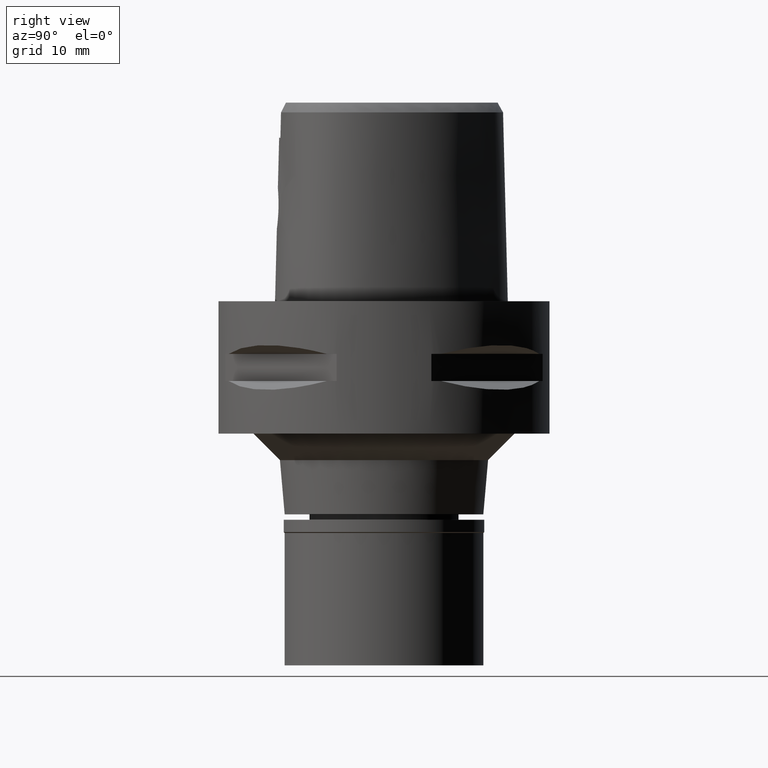
[diagram: clean part render]
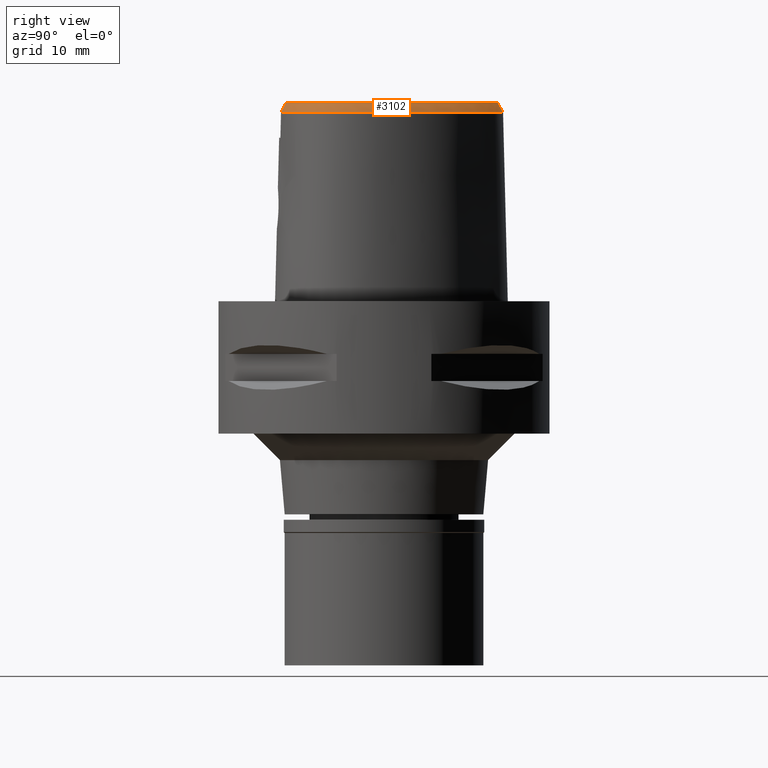
[diagram: same view with one face highlighted and labeled with its STEP entity id]
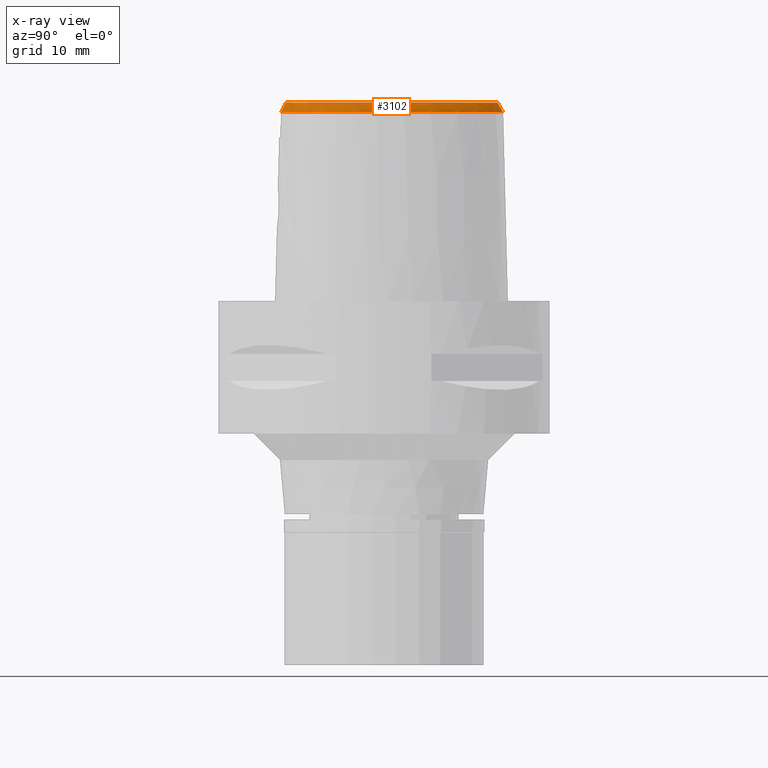
[diagram: x-ray of the same camera — body ghosted, the highlighted face saturated]
A machine part, right view. The second image highlights one B-rep face of the part: STEP entity #3102.
The next image is the same camera in x-ray: the body ghosted, the highlighted face saturated — about 0% of this face is hidden behind the body in this view.
In plain terms, the highlighted face is a freeform B-spline surface patch.
Its self-contained STEP definition (entity closure, byte-faithful):
#8 = CARTESIAN_POINT ( 'NONE',  ( 0.6093838095963001189, 17.71230683697999808, 28.97686686012000123 ) ) ;
#22 = CARTESIAN_POINT ( 'NONE',  ( 2.935843368188313818, -15.25651436812808193, 29.10537844856967382 ) ) ;
#33 = CARTESIAN_POINT ( 'NONE',  ( 5.902447799194773026, -15.16907841529369705, 28.52071728562183139 ) ) ;
#64 = CARTESIAN_POINT ( 'NONE',  ( 6.725716872381999778, -14.30436687949999985, 29.54379367783999655 ) ) ;
#88 = CARTESIAN_POINT ( 'NONE',  ( 9.864275885139001332, -13.15703569186000088, 29.54379249529999996 ) ) ;
#91 = CARTESIAN_POINT ( 'NONE',  ( 16.11273027397322721, -2.627494158580803596, 30.00000000000427747 ) ) ;
#109 = CARTESIAN_POINT ( 'NONE',  ( 15.17487983808000074, -9.740184240134000859, 28.40994130336000012 ) ) ;
#112 = CARTESIAN_POINT ( 'NONE',  ( 3.130495111450475321, -14.73481892791929049, 30.00000000000128964 ) ) ;
#121 = VECTOR ( 'NONE', #2207, 999.9999999999998863 ) ;
#127 = CARTESIAN_POINT ( 'NONE',  ( -0.3199761441156999675, 17.40442059152000098, 29.54379257216999832 ) ) ;
#134 = CARTESIAN_POINT ( 'NONE',  ( 13.06460231238362901, -11.91950040983171100, 28.52071728562183139 ) ) ;
#136 = CARTESIAN_POINT ( 'NONE',  ( 14.65631668923999875, -9.372439358043997970, 29.54379253140999850 ) ) ;
#140 = CARTESIAN_POINT ( 'NONE',  ( 15.04259016984417130, -8.247723288183253842, 30.00000000000598988 ) ) ;
#157 = CARTESIAN_POINT ( 'NONE',  ( 12.01312527259999996, -11.53957446923999974, 30.11071808186000354 ) ) ;
#180 = CARTESIAN_POINT ( 'NONE',  ( 16.35777456576999711, -7.445085635991000039, 28.40994168585999802 ) ) ;
#183 = CARTESIAN_POINT ( 'NONE',  ( 9.420872132874579918, 12.20574557692418516, 30.00000000000307310 ) ) ;
#187 = VERTEX_POINT ( 'NONE', #2024 ) ;
#203 = CARTESIAN_POINT ( 'NONE',  ( 15.75824388839000179, -7.233689738081000797, 29.54379264114999870 ) ) ;
#223 = CARTESIAN_POINT ( 'NONE',  ( 15.93889640786999884, 0.5475053942880000468, 29.54379368143000306 ) ) ;
#244 = CARTESIAN_POINT ( 'NONE',  ( 12.90506493225000106, 8.002237147235000236, 29.54379256972999812 ) ) ;
#258 = CARTESIAN_POINT ( 'NONE',  ( 16.47905536661268044, -6.962316254603254428, 28.52071728562183139 ) ) ;
#265 = CARTESIAN_POINT ( 'NONE',  ( 16.12387340745999964, -5.921990540544999959, 29.54379251133999773 ) ) ;
#286 = CARTESIAN_POINT ( 'NONE',  ( 6.190042417105999561, 15.30623746194000034, 29.54379364874000302 ) ) ;
#305 = CARTESIAN_POINT ( 'NONE',  ( 12.13859881828000020, 9.204293728510998918, 29.54379292301999982 ) ) ;
#323 = CARTESIAN_POINT ( 'NONE',  ( 9.171918081048001881, 13.71941449927000001, 28.40994397085000145 ) ) ;
#352 = CARTESIAN_POINT ( 'NONE',  ( 0.5648424202481000522, 17.07813508870000163, 30.11071815164000043 ) ) ;
#359 = CARTESIAN_POINT ( 'NONE',  ( 4.149964579758000482, -14.53639140655999995, 30.11071817559999886 ) ) ;
#376 = CARTESIAN_POINT ( 'NONE',  ( 10.71744039656999981, 11.61251256066999993, 28.97686667002000149 ) ) ;
#384 = CARTESIAN_POINT ( 'NONE',  ( 5.433512901940999562, -14.29452593002999983, 30.11071805995999995 ) ) ;
#406 = CARTESIAN_POINT ( 'NONE',  ( 12.19826453391999976, -11.79790303414000086, 29.54379279338000330 ) ) ;
#438 = CARTESIAN_POINT ( 'NONE',  ( 5.634770118036000142, -15.22633773310999850, 28.40994253100000222 ) ) ;
#462 = CARTESIAN_POINT ( 'NONE',  ( 15.52582181572999964, -9.206499257756998844, 28.40994155487000228 ) ) ;
#465 = CARTESIAN_POINT ( 'NONE',  ( 12.65514534656885992, -11.12483370674041616, 30.00000000000780886 ) ) ;
#470 = CARTESIAN_POINT ( 'NONE',  ( 3.168920890822999770, -15.55911073834000113, 28.52071374672999582 ) ) ;
#478 = CARTESIAN_POINT ( 'NONE',  ( -0.5033616080153999750, 17.71279292311000120, 28.97686678125999649 ) ) ;
#483 = CARTESIAN_POINT ( 'NONE',  ( 12.81710792220999906, -11.32277608545999925, 29.54379252484000062 ) ) ;
#514 = CARTESIAN_POINT ( 'NONE',  ( 15.81992742909000071, -7.946208588432999598, 28.97686723277999832 ) ) ;
#517 = CARTESIAN_POINT ( 'NONE',  ( 5.446614459517660656, -14.35518554872889396, 30.00000000000613554 ) ) ;
#536 = CARTESIAN_POINT ( 'NONE',  ( 16.61097264532999773, -1.594263610597000058, 28.97686664875000062 ) ) ;
#539 = CARTESIAN_POINT ( 'NONE',  ( 14.01089202938281275, 5.377385268371812188, 29.99999999999628031 ) ) ;
#552 = ORIENTED_EDGE ( 'NONE', *, *, #3185, .F. ) ;
#558 = CARTESIAN_POINT ( 'NONE',  ( 17.01672599858000012, -3.547060421719999912, 28.40994166149999955 ) ) ;
#584 = CARTESIAN_POINT ( 'NONE',  ( 16.56774560355999881, -5.231900794039999525, 28.97686704971999916 ) ) ;
#607 = CARTESIAN_POINT ( 'NONE',  ( 14.17072550676000020, 7.055160691494000602, 28.40994178621000188 ) ) ;
#623 = CARTESIAN_POINT ( 'NONE',  ( 15.84228676733572350, 3.460033425849364797, 28.52071728562183139 ) ) ;
#628 = CARTESIAN_POINT ( 'NONE',  ( 15.93837073467999765, -5.142767907357000290, 30.11071813110999784 ) ) ;
#645 = CARTESIAN_POINT ( 'NONE',  ( 12.66531327344000069, 9.559891197331998214, 28.40994266829000026 ) ) ;
#668 = CARTESIAN_POINT ( 'NONE',  ( 12.40195604586000044, 9.382092462921999498, 28.97686779565999871 ) ) ;
#689 = CARTESIAN_POINT ( 'NONE',  ( 1.241023916272000038, 17.64652943651000072, 28.97686682100000155 ) ) ;
#710 = CARTESIAN_POINT ( 'NONE',  ( 4.614737539967000757, 16.22603448789000069, 29.54379400769000341 ) ) ;
#739 = CARTESIAN_POINT ( 'NONE',  ( 1.826739951924000183, 17.22200451800999943, 29.54379265892000106 ) ) ;
#752 = CARTESIAN_POINT ( 'NONE',  ( 2.406543924163999648, -14.80491841401999942, 30.00000000000000000 ) ) ;
#769 = CARTESIAN_POINT ( 'NONE',  ( 12.61583823908000213, -11.07679456976000054, 30.11071814704000005 ) ) ;
#790 = CARTESIAN_POINT ( 'NONE',  ( 14.28038412890999886, -9.866515815521999855, 29.54379271425000297 ) ) ;
#793 = CARTESIAN_POINT ( 'NONE',  ( 14.44767169633135140, -9.224476417585355748, 30.00000000000336797 ) ) ;
#819 = CARTESIAN_POINT ( 'NONE',  ( 8.066956863342999995, -14.55934888468999944, 28.40994458084999863 ) ) ;
#823 = CARTESIAN_POINT ( 'NONE',  ( 14.08238499151651979, -9.704590128438351115, 29.99999999999821654 ) ) ;
#846 = CARTESIAN_POINT ( 'NONE',  ( 11.33472188577000139, -11.99541230870999975, 30.11071809424000278 ) ) ;
#849 = CARTESIAN_POINT ( 'NONE',  ( 6.863227115065537731, 14.51498137219919293, 29.99999999999750599 ) ) ;
#866 = CARTESIAN_POINT ( 'NONE',  ( 13.14940463489999978, -10.60941588449000150, 30.11071814648000000 ) ) ;
#869 = CARTESIAN_POINT ( 'NONE',  ( 15.99982784346323150, -5.151471542954549676, 29.99999999999611333 ) ) ;
#892 = CARTESIAN_POINT ( 'NONE',  ( 14.81881065814000031, 5.753593080425000394, 28.40994240331999876 ) ) ;
#895 = CARTESIAN_POINT ( 'NONE',  ( 8.816245487876491538, -13.33426548781643284, 30.00000000000301625 ) ) ;
#914 = ORIENTED_EDGE ( 'NONE', *, *, #1174, .T. ) ;
#915 = CARTESIAN_POINT ( 'NONE',  ( 15.38503394639000099, 4.446956411293999878, 28.40994125346000132 ) ) ;
#934 = CARTESIAN_POINT ( 'NONE',  ( 15.97886072333000129, -1.660590349578999980, 30.11071817450999788 ) ) ;
#962 = CARTESIAN_POINT ( 'NONE',  ( 13.60954229953000016, 6.756915183335999942, 29.54379266995000108 ) ) ;
#983 = CARTESIAN_POINT ( 'NONE',  ( 11.87524159069000085, 9.026494994101000202, 30.11071805039000182 ) ) ;
#999 = CARTESIAN_POINT ( 'NONE',  ( 13.75951381385633887, 7.944084035686378442, 28.52071728562183139 ) ) ;
#1005 = CARTESIAN_POINT ( 'NONE',  ( 3.748491089193000114, 16.27801906975999913, 30.11071807185000182 ) ) ;
#1021 = CARTESIAN_POINT ( 'NONE',  ( 2.396009137172999903, 16.75583079005000187, 30.11071814977000116 ) ) ;
#1046 = CARTESIAN_POINT ( 'NONE',  ( 6.543033675899000201, 15.83479721036000143, 28.40994519768999993 ) ) ;
#1068 = CARTESIAN_POINT ( 'NONE',  ( 6.013546787709000085, 15.04195758773999891, 30.11071787426999791 ) ) ;
#1093 = CARTESIAN_POINT ( 'NONE',  ( 8.514307952391000356, 13.02922087337999990, 30.11071795969999698 ) ) ;
#1102 = CARTESIAN_POINT ( 'NONE',  ( 2.083006125113000095, -14.77047860613999930, 30.11071807413000201 ) ) ;
#1138 = EDGE_CURVE ( 'NONE', #3514, #2784, #1669, .T. ) ;
#1153 = CARTESIAN_POINT ( 'NONE',  ( 13.58318725928999982, -11.07408864804000004, 28.97686690776999896 ) ) ;
#1164 = CARTESIAN_POINT ( 'NONE',  ( 0.04119101265794000016, 17.73220283874999836, 28.97686716982000021 ) ) ;
#1172 = CARTESIAN_POINT ( 'NONE',  ( 14.39703511481999954, -9.188566916998999190, 30.11071814543999992 ) ) ;
#1174 = EDGE_CURVE ( 'NONE', #3395, #187, #2256, .T. ) ;
#1176 = CARTESIAN_POINT ( 'NONE',  ( 14.76450668990936599, -8.742560395149537200, 29.99999999999736744 ) ) ;
#1201 = CARTESIAN_POINT ( 'NONE',  ( 9.729310528974000505, -12.86932534022999874, 30.11071815419999709 ) ) ;
#1204 = CARTESIAN_POINT ( 'NONE',  ( 6.658132732489084660, -14.05774790739354607, 29.99999999999520028 ) ) ;
#1222 = CARTESIAN_POINT ( 'NONE',  ( 15.83479096468999892, -8.656682533828998771, 28.40994107404999980 ) ) ;
#1241 = CARTESIAN_POINT ( 'NONE',  ( 15.94869174194999850, 1.812633315367999876, 28.97686921180000041 ) ) ;
#1244 = CARTESIAN_POINT ( 'NONE',  ( 12.68590586676983278, 7.870511070825772393, 30.00000000000323297 ) ) ;
#1249 = B_SPLINE_SURFACE_WITH_KNOTS ( 'NONE', 3, 3, ( 
 ( #2107, #3984, #2153, #1780 ),
 ( #1102, #4650, #4320, #2179 ),
 ( #3558, #1405, #2847, #4675 ),
 ( #4295, #1431, #2510, #3607 ),
 ( #359, #1806, #3251, #4342 ),
 ( #384, #3324, #4011, #438 ),
 ( #2631, #64, #3651, #3678 ),
 ( #1499, #2991, #4083, #819 ),
 ( #4417, #3298, #2272, #4106 ),
 ( #1201, #88, #1590, #2945 ),
 ( #2200, #3037, #4395, #4444 ),
 ( #846, #2247, #3722, #3015 ),
 ( #157, #406, #1855, #1543 ),
 ( #769, #483, #4488, #1881 ),
 ( #866, #2225, #1153, #1924 ),
 ( #3370, #2583, #2562, #3699 ),
 ( #4032, #790, #1570, #1521 ),
 ( #1172, #136, #4468, #109 ),
 ( #2968, #2606, #4061, #462 ),
 ( #3750, #1900, #3344, #1222 ),
 ( #2654, #2292, #514, #1948 ),
 ( #3396, #203, #1993, #180 ),
 ( #2341, #2393, #1640, #3775 ),
 ( #3821, #265, #3798, #4175 ),
 ( #628, #2318, #584, #2062 ),
 ( #4539, #2778, #1611, #1335 ),
 ( #2362, #1267, #3132, #558 ),
 ( #4583, #2416, #1971, #3059 ),
 ( #934, #3506, #536, #3467 ),
 ( #2022, #3418, #1707, #4562 ),
 ( #4516, #223, #3155, #3438 ),
 ( #1661, #4128, #1241, #2675 ),
 ( #2703, #3089, #4154, #3114 ),
 ( #1313, #2044, #1291, #915 ),
 ( #2749, #4195, #2725, #892 ),
 ( #3869, #962, #3849, #607 ),
 ( #3488, #244, #1681, #4219 ),
 ( #983, #305, #668, #645 ),
 ( #3220, #4669, #2101, #3622 ),
 ( #2529, #4243, #376, #2083 ),
 ( #3175, #1422, #4288, #3571 ),
 ( #1093, #2169, #2435, #323 ),
 ( #1358, #2864, #1822, #3908 ),
 ( #2888, #4262, #3886, #4313 ),
 ( #1068, #286, #4606, #1046 ),
 ( #3531, #1727, #3601, #2799 ),
 ( #3193, #710, #2504, #2123 ),
 ( #1005, #4624, #1380, #1398 ),
 ( #1745, #2817, #2839, #1797 ),
 ( #1021, #4643, #3950, #4335 ),
 ( #2460, #739, #3552, #2482 ),
 ( #3928, #2145, #689, #1769 ),
 ( #352, #3242, #8, #1445 ),
 ( #3978, #4363, #1164, #4100 ),
 ( #1874, #127, #3643, #3360 ),
 ( #4409, #3288, #478, #4387 ) ),
 .UNSPECIFIED., .F., .F., .F.,
 ( 4, 1, 1, 1, 1, 1, 1, 1, 1, 1, 1, 1, 1, 1, 1, 1, 1, 1, 1, 1, 1, 1, 1, 1, 1, 1, 1, 1, 1, 1, 1, 1, 1, 1, 1, 1, 1, 1, 1, 1, 1, 1, 1, 1, 1, 1, 1, 1, 1, 1, 1, 1, 1, 4 ),
 ( 4, 4 ),
 ( -0.006850724150829000207, 0.0000000000000000000, 0.005706470806014000280, 0.02559234138984000165, 0.04547821197368000223, 0.06536408255751000040, 0.08524995314132000068, 0.1051358237252000005, 0.1250216943090000088, 0.1449075648927999893, 0.1647934354767000009, 0.1846793060604999814, 0.2045651766443000175, 0.2244510472280999980, 0.2443369178119999818, 0.2642227883957999901, 0.2841086589796000261, 0.3039945295635000377, 0.3238804001471999872, 0.3437662707310999988, 0.3636521413150000104, 0.3835380118987999909, 0.4034238824826000269, 0.4233097530664000074, 0.4431956236502999635, 0.4630814942340999996, 0.4829673648179000356, 0.5028532354018000472, 0.5227391059856000277, 0.5426249765694000082, 0.5625108471533000198, 0.5823967177369999693, 0.6022825883208999809, 0.6221684589047999925, 0.6420543294886000840, 0.6619402000723999535, 0.6818260706561999340, 0.7017119412401000567, 0.7215978118238999262, 0.7414836824077000177, 0.7613695529916000293, 0.7812554235752999787, 0.8011412941591999903, 0.8210271647431000019, 0.8409130353268000624, 0.8607989059106999630, 0.8806847764944999435, 0.9005706470783999551, 0.9204565176621999356, 0.9403423882460000272, 0.9602282588299000388, 0.9801141294135999882, 1.000000000000000000, 1.016057694064999906 ),
 ( -0.05273595436168999895, 1.052767903214999912 ),
 .UNSPECIFIED. ) ;
#1267 = CARTESIAN_POINT ( 'NONE',  ( 16.38118234002000406, -3.537363430661999875, 29.54379263416999990 ) ) ;
#1282 = CARTESIAN_POINT ( 'NONE',  ( -2.586864991386999930E-11, 17.98202997909999823, 28.52071728569000086 ) ) ;
#1291 = CARTESIAN_POINT ( 'NONE',  ( 15.09026123808999920, 4.328293621848000150, 28.97686688527999976 ) ) ;
#1300 = B_SPLINE_CURVE_WITH_KNOTS ( 'NONE', 3,
 ( #2926, #4373, #4014, #3654, #3302, #1502, #4654, #1593, #2995, #3347, #1927, #849, #3040, #1974, #183, #2610, #2679, #4491, #1244, #3373, #539, #4036, #3754, #2971, #3063, #3725, #1614, #91, #1524, #4420, #869, #2252, #4064, #3399, #4109, #140, #1176, #793, #823, #3702, #4087, #465, #4447, #2228, #2275, #4132, #895, #1903, #1204, #517, #2321, #112, #1884, #3421 ),
 .UNSPECIFIED., .F., .F.,
 ( 4, 1, 1, 1, 1, 1, 1, 1, 1, 1, 1, 1, 1, 1, 1, 1, 1, 1, 1, 1, 1, 1, 1, 1, 1, 1, 1, 1, 1, 1, 1, 1, 1, 1, 1, 1, 1, 1, 1, 1, 1, 1, 1, 1, 1, 1, 1, 1, 1, 1, 1, 4 ),
 ( 0.0000000000000000000, 0.01988587058640001182, 0.03977174117009996124, 0.05965761175399997285, 0.07954348233780006439, 0.09942935292160004490, 0.1193152235055000565, 0.1392010940893000370, 0.1590869646731999376, 0.1789728352568999981, 0.1988587058408000097, 0.2187445764247000213, 0.2386304470083999707, 0.2585163175922999823, 0.2784021881761000738, 0.2982880587598999433, 0.3181739293438000660, 0.3380597999276000465, 0.3579456705113999160, 0.3778315410952000075, 0.3977174116791000191, 0.4176032822630000307, 0.4374891528466999802, 0.4573750234305999918, 0.4772608940143999723, 0.4971467645981999528, 0.5170326351820999644, 0.5369185057659000559, 0.5568043763497000365, 0.5766902469335999371, 0.5965761175174000286, 0.6164619881012000091, 0.6363478586849999896, 0.6562337292689000012, 0.6761195998528000128, 0.6960054704364999623, 0.7158913410203999739, 0.7357772116042000654, 0.7556630821880000459, 0.7755489527718999465, 0.7954348233557000381, 0.8153206939395000186, 0.8352065645232999991, 0.8550924351072000107, 0.8749783056909999912, 0.8948641762747999717, 0.9147500468586799993, 0.9346359174424899718, 0.9545217880263200394, 0.9744076586101599879, 0.9942935291939859477, 1.000000000000000000 ),
 .UNSPECIFIED. ) ;
#1306 = CARTESIAN_POINT ( 'NONE',  ( 1.893775678556598674, 17.84807068955174003, 28.52071728562183139 ) ) ;
#1313 = CARTESIAN_POINT ( 'NONE',  ( 14.50071582150999916, 4.090968042956999895, 30.11071814890999931 ) ) ;
#1335 = CARTESIAN_POINT ( 'NONE',  ( 16.97442085100000142, -4.442721899711000511, 28.40994240562000073 ) ) ;
#1353 = CARTESIAN_POINT ( 'NONE',  ( 16.79165444019960773, -0.3537785292841060247, 28.52071728562183139 ) ) ;
#1358 = CARTESIAN_POINT ( 'NONE',  ( 7.660778724874999668, 13.79658111741999882, 30.11071809939999966 ) ) ;
#1380 = CARTESIAN_POINT ( 'NONE',  ( 3.998519248887999478, 16.86242977477999716, 28.97686759740000184 ) ) ;
#1398 = CARTESIAN_POINT ( 'NONE',  ( 4.123533328735999426, 17.15463512728999973, 28.40994236018000052 ) ) ;
#1405 = CARTESIAN_POINT ( 'NONE',  ( 2.403411322553999696, -15.06305735479000063, 29.54379282241000126 ) ) ;
#1422 = CARTESIAN_POINT ( 'NONE',  ( 9.607189809147001824, 12.38088214681999943, 29.54379307332999716 ) ) ;
#1431 = CARTESIAN_POINT ( 'NONE',  ( 3.160617035171999767, -14.98867449439000055, 29.54379274315000359 ) ) ;
#1445 = CARTESIAN_POINT ( 'NONE',  ( 0.6316545042702998991, 18.02939271111000252, 28.40994121435999986 ) ) ;
#1459 = CARTESIAN_POINT ( 'NONE',  ( 3.168920890822999770, -15.55911073834000113, 28.52071374672999582 ) ) ;
#1499 = CARTESIAN_POINT ( 'NONE',  ( 7.764100680780000374, -13.65540046977999999, 30.11071791722000057 ) ) ;
#1502 = CARTESIAN_POINT ( 'NONE',  ( 2.412811123805220781, 16.81558681049879311, 30.00000000000952127 ) ) ;
#1521 = CARTESIAN_POINT ( 'NONE',  ( 14.77248822746999934, -10.26896349951000076, 28.40994194062000133 ) ) ;
#1524 = CARTESIAN_POINT ( 'NONE',  ( 16.12546998863133396, -3.533461825553620095, 30.00000000000239453 ) ) ;
#1534 = ORIENTED_EDGE ( 'NONE', *, *, #4026, .T. ) ;
#1543 = CARTESIAN_POINT ( 'NONE',  ( 12.56854305657000026, -12.31456016393999953, 28.40994221641999928 ) ) ;
#1570 = CARTESIAN_POINT ( 'NONE',  ( 14.52643617819000177, -10.06773965751999889, 28.97686732742999993 ) ) ;
#1590 = CARTESIAN_POINT ( 'NONE',  ( 9.999241241304000383, -13.44474604348999947, 28.97686683641000016 ) ) ;
#1593 = CARTESIAN_POINT ( 'NONE',  ( 3.772905803807594438, 16.33508552418710025, 30.00000000000250822 ) ) ;
#1611 = CARTESIAN_POINT ( 'NONE',  ( 16.65755113590000036, -4.418191944823999684, 28.97686762664000071 ) ) ;
#1614 = CARTESIAN_POINT ( 'NONE',  ( 16.04058509949180689, -1.654113685488315610, 30.00000000000348166 ) ) ;
#1640 = CARTESIAN_POINT ( 'NONE',  ( 16.26386687828000177, -6.687944645631000107, 28.97686693752999787 ) ) ;
#1661 = CARTESIAN_POINT ( 'NONE',  ( 15.33694530819000157, 1.640367075946999931, 30.11071789713999891 ) ) ;
#1669 = B_SPLINE_CURVE_WITH_KNOTS ( 'NONE', 3,
 ( #1459, #22, #2278, #752 ),
 .UNSPECIFIED., .F., .F.,
 ( 4, 4 ),
 ( 0.0000000000000000000, 1.000000000000000000 ),
 .UNSPECIFIED. ) ;
#1681 = CARTESIAN_POINT ( 'NONE',  ( 13.17741226612000105, 8.165932158590997858, 28.97686700331999887 ) ) ;
#1700 = CARTESIAN_POINT ( 'NONE',  ( 15.07117004566746132, -9.793013887526701211, 28.52071728562183139 ) ) ;
#1707 = CARTESIAN_POINT ( 'NONE',  ( 16.46780291693000109, -0.5211436058695999574, 28.97686767565999943 ) ) ;
#1727 = CARTESIAN_POINT ( 'NONE',  ( 5.387651294821000469, 15.80685411904000226, 29.54379436420999738 ) ) ;
#1745 = CARTESIAN_POINT ( 'NONE',  ( 3.057577589866999901, 16.54680419848000028, 30.11071820621999962 ) ) ;
#1769 = CARTESIAN_POINT ( 'NONE',  ( 1.285098553784000064, 17.96131679994000052, 28.40994115355999838 ) ) ;
#1780 = CARTESIAN_POINT ( 'NONE',  ( 1.991711881639000259, -15.73238669924999833, 28.40994230721000235 ) ) ;
#1797 = CARTESIAN_POINT ( 'NONE',  ( 3.375374028693999939, 17.44578833049000011, 28.40994043044000250 ) ) ;
#1806 = CARTESIAN_POINT ( 'NONE',  ( 4.200182779700000424, -14.85015996115000014, 29.54379240712000154 ) ) ;
#1822 = CARTESIAN_POINT ( 'NONE',  ( 8.072668421462999788, 14.28061089266000039, 28.97686734280999943 ) ) ;
#1855 = CARTESIAN_POINT ( 'NONE',  ( 12.38340379525000046, -12.05623159904000019, 28.97686750489999952 ) ) ;
#1874 = CARTESIAN_POINT ( 'NONE',  ( -0.3080477602145999527, 17.08698171981000158, 30.11071813554000087 ) ) ;
#1881 = CARTESIAN_POINT ( 'NONE',  ( 13.21964728847999915, -11.81473911686999934, 28.40994128046000000 ) ) ;
#1884 = CARTESIAN_POINT ( 'NONE',  ( 2.538962679605370809, -14.79292722369826762, 30.00000000000517275 ) ) ;
#1900 = CARTESIAN_POINT ( 'NONE',  ( 15.26988235722999931, -8.365058744167999549, 29.54379246562000105 ) ) ;
#1903 = CARTESIAN_POINT ( 'NONE',  ( 7.783816186093509337, -13.71424622166914098, 30.00000000000179412 ) ) ;
#1906 = CARTESIAN_POINT ( 'NONE',  ( -2.586864991386999930E-11, 17.98202997909999823, 28.52071728569000086 ) ) ;
#1922 = CARTESIAN_POINT ( 'NONE',  ( 8.702202469521898465, -14.36510984286469927, 28.52071728562183139 ) ) ;
#1924 = CARTESIAN_POINT ( 'NONE',  ( 13.80007857148000028, -11.30642502982000153, 28.40994128842000066 ) ) ;
#1927 = CARTESIAN_POINT ( 'NONE',  ( 6.048015628560303725, 15.09357031580100994, 30.00000000000147082 ) ) ;
#1948 = CARTESIAN_POINT ( 'NONE',  ( 16.11177229065000205, -8.072148914407000220, 28.40994179352000160 ) ) ;
#1971 = CARTESIAN_POINT ( 'NONE',  ( 16.68567384682999943, -2.601474443564999905, 28.97686697996000049 ) ) ;
#1974 = CARTESIAN_POINT ( 'NONE',  ( 8.557117433366679293, 13.07415149353055916, 30.00000000000509814 ) ) ;
#1993 = CARTESIAN_POINT ( 'NONE',  ( 16.05800922707999945, -7.339387687035999974, 28.97686716351000058 ) ) ;
#2022 = CARTESIAN_POINT ( 'NONE',  ( 15.84060810049999901, -0.6239597051784000481, 30.11071806338000201 ) ) ;
#2024 = CARTESIAN_POINT ( 'NONE',  ( -6.301949014096001186E-11, 17.15328888647999861, 30.00000000000000000 ) ) ;
#2044 = CARTESIAN_POINT ( 'NONE',  ( 14.79548852980000007, 4.209630832402999623, 29.54379251709999821 ) ) ;
#2056 = CARTESIAN_POINT ( 'NONE',  ( 16.99625257117340382, -3.273868232426908165, 28.52071728562183139 ) ) ;
#2062 = CARTESIAN_POINT ( 'NONE',  ( 16.88243303800000206, -5.276467237381000430, 28.40994150902000115 ) ) ;
#2083 = CARTESIAN_POINT ( 'NONE',  ( 10.96042787933999918, 11.81728170261999900, 28.40994091893999851 ) ) ;
#2101 = CARTESIAN_POINT ( 'NONE',  ( 11.57632342689000104, 10.53715705435000061, 28.97686746471999797 ) ) ;
#2107 = CARTESIAN_POINT ( 'NONE',  ( 1.923064837929000070, -14.78203392538000038, 30.11071807554000301 ) ) ;
#2123 = CARTESIAN_POINT ( 'NONE',  ( 4.901017175348999722, 16.79354495141999948, 28.40994644875000219 ) ) ;
#2145 = CARTESIAN_POINT ( 'NONE',  ( 1.196949278761000102, 17.33174207308999826, 29.54379248844000116 ) ) ;
#2153 = CARTESIAN_POINT ( 'NONE',  ( 1.968829533736000004, -15.41560244128999990, 28.97686756331999902 ) ) ;
#2168 = ORIENTED_EDGE ( 'NONE', *, *, #1138, .F. ) ;
#2169 = CARTESIAN_POINT ( 'NONE',  ( 8.733511328609999680, 13.25928541534999994, 29.54379329675000321 ) ) ;
#2179 = CARTESIAN_POINT ( 'NONE',  ( 2.157416479592999980, -15.72041507789000114, 28.40994232746000137 ) ) ;
#2200 = CARTESIAN_POINT ( 'NONE',  ( 10.57534509141999912, -12.44017983178000009, 30.11071814222999876 ) ) ;
#2207 = DIRECTION ( 'NONE',  ( -2.191003053506998610E-11, -0.4887572537797997274, 0.8724198226069995732 ) ) ;
#2225 = CARTESIAN_POINT ( 'NONE',  ( 13.36629594709999935, -10.84175226626000033, 29.54379252712999815 ) ) ;
#2228 = CARTESIAN_POINT ( 'NONE',  ( 11.36765809995468146, -12.04801986073105446, 30.00000000000587619 ) ) ;
#2244 = CARTESIAN_POINT ( 'NONE',  ( 3.738627708317511011, -15.49270856215212255, 28.52071728562183139 ) ) ;
#2247 = CARTESIAN_POINT ( 'NONE',  ( 11.50336979237000001, -12.26478611925000095, 29.54379274239000353 ) ) ;
#2252 = CARTESIAN_POINT ( 'NONE',  ( 15.87349190487917916, -5.869792298898440563, 30.00000000000268940 ) ) ;
#2256 = LINE ( 'NONE', #1906, #121 ) ;
#2272 = CARTESIAN_POINT ( 'NONE',  ( 9.029114133353999705, -13.86680637805999972, 28.97686699731999838 ) ) ;
#2275 = CARTESIAN_POINT ( 'NONE',  ( 10.60500548643801899, -12.49469941439889631, 29.99999999999987921 ) ) ;
#2278 = CARTESIAN_POINT ( 'NONE',  ( 2.674237079556583296, -15.00654560860462539, 29.59847386632633714 ) ) ;
#2292 = CARTESIAN_POINT ( 'NONE',  ( 15.52808256752999938, -7.820268262459000752, 29.54379267203999859 ) ) ;
#2318 = CARTESIAN_POINT ( 'NONE',  ( 16.25305816911999912, -5.187334350698000307, 29.54379259042000072 ) ) ;
#2321 = CARTESIAN_POINT ( 'NONE',  ( 4.159771979224795579, -14.59766906204221826, 29.99999999999982236 ) ) ;
#2341 = CARTESIAN_POINT ( 'NONE',  ( 15.65148698336999900, -6.517375990929999752, 30.11071814325999796 ) ) ;
#2362 = CARTESIAN_POINT ( 'NONE',  ( 16.06341051073999893, -3.532514935132999856, 30.11071812049999963 ) ) ;
#2393 = CARTESIAN_POINT ( 'NONE',  ( 15.95767693082000172, -6.602660318279999885, 29.54379254039000102 ) ) ;
#2416 = CARTESIAN_POINT ( 'NONE',  ( 16.36820157234000206, -2.615892160246000131, 29.54379255930999904 ) ) ;
#2429 = CARTESIAN_POINT ( 'NONE',  ( 4.422474504766030101, 17.08283549833216597, 28.52071728562183139 ) ) ;
#2435 = CARTESIAN_POINT ( 'NONE',  ( 8.952714704828999004, 13.48934995730999908, 28.97686863380000233 ) ) ;
#2460 = CARTESIAN_POINT ( 'NONE',  ( 1.761358667571000014, 16.91095034079000214, 30.11071811448999824 ) ) ;
#2482 = CARTESIAN_POINT ( 'NONE',  ( 1.957502520628999765, 17.84411287244000022, 28.40994174777999959 ) ) ;
#2504 = CARTESIAN_POINT ( 'NONE',  ( 4.757877357657999795, 16.50978971965999875, 28.97687022822000102 ) ) ;
#2510 = CARTESIAN_POINT ( 'NONE',  ( 3.198049324814999927, -15.30413891092999989, 28.97686739223999908 ) ) ;
#2529 = CARTESIAN_POINT ( 'NONE',  ( 10.23146543100999928, 11.20297427676000090, 30.11071817219999858 ) ) ;
#2562 = CARTESIAN_POINT ( 'NONE',  ( 14.08404009865000006, -10.57350996719999969, 28.97686695268999912 ) ) ;
#2580 = CARTESIAN_POINT ( 'NONE',  ( 11.33338046474129257, -13.08225241902118263, 28.52071728562183139 ) ) ;
#2583 = CARTESIAN_POINT ( 'NONE',  ( 13.85217598146000206, -10.35610102136999977, 29.54379254714999803 ) ) ;
#2606 = CARTESIAN_POINT ( 'NONE',  ( 14.98293739758000065, -8.875670181938000169, 29.54379260356999737 ) ) ;
#2610 = CARTESIAN_POINT ( 'NONE',  ( 10.27891984617833643, 11.24296481357537836, 29.99999999999602096 ) ) ;
#2631 = CARTESIAN_POINT ( 'NONE',  ( 6.641730566489999710, -13.99789532473999998, 30.11071786719999821 ) ) ;
#2654 = CARTESIAN_POINT ( 'NONE',  ( 15.23623770596000071, -7.694327936485000130, 30.11071811130999976 ) ) ;
#2675 = CARTESIAN_POINT ( 'NONE',  ( 16.25456495884000319, 1.898766435079000114, 28.40994486913999850 ) ) ;
#2679 = CARTESIAN_POINT ( 'NONE',  ( 11.11868440495826604, 10.19157821280357190, 29.99999999999448619 ) ) ;
#2703 = CARTESIAN_POINT ( 'NONE',  ( 14.96159964683999988, 2.849022871575000337, 30.11071813651999918 ) ) ;
#2725 = CARTESIAN_POINT ( 'NONE',  ( 14.53075225773999968, 5.619458507090999255, 28.97686762516000059 ) ) ;
#2749 = CARTESIAN_POINT ( 'NONE',  ( 13.95463545695000107, 5.351189360424000618, 30.11071806884000068 ) ) ;
#2778 = CARTESIAN_POINT ( 'NONE',  ( 16.34068142079999930, -4.393661989937999834, 29.54379284766000069 ) ) ;
#2784 = VERTEX_POINT ( 'NONE', #2973 ) ;
#2792 = CARTESIAN_POINT ( 'NONE',  ( 15.58740368722445879, -8.999391713747128208, 28.52071728562183139 ) ) ;
#2799 = CARTESIAN_POINT ( 'NONE',  ( 5.708270125450999544, 16.35567513524999939, 28.40994769138000109 ) ) ;
#2817 = CARTESIAN_POINT ( 'NONE',  ( 3.163509736142999795, 16.84646557580999726, 29.54379228095999821 ) ) ;
#2839 = CARTESIAN_POINT ( 'NONE',  ( 3.269441882419000134, 17.14612695315000224, 28.97686635570000036 ) ) ;
#2847 = CARTESIAN_POINT ( 'NONE',  ( 2.431737114411999912, -15.37941621000000048, 28.97686757001000046 ) ) ;
#2864 = CARTESIAN_POINT ( 'NONE',  ( 7.866723573168998840, 14.03859600504000049, 29.54379272111000176 ) ) ;
#2888 = CARTESIAN_POINT ( 'NONE',  ( 6.825788154181999801, 14.46548281498999877, 30.11071817916000271 ) ) ;
#2919 = CARTESIAN_POINT ( 'NONE',  ( 14.26907046692357994, -10.79012245165427863, 28.52071728562183139 ) ) ;
#2926 = CARTESIAN_POINT ( 'NONE',  ( -6.301949014096001186E-11, 17.15328888647999861, 30.00000000000000000 ) ) ;
#2945 = CARTESIAN_POINT ( 'NONE',  ( 10.13420659746999952, -13.73245639510999894, 28.40994117752000037 ) ) ;
#2968 = CARTESIAN_POINT ( 'NONE',  ( 14.71149518851000160, -8.710255644027999011, 30.11071812791999847 ) ) ;
#2971 = CARTESIAN_POINT ( 'NONE',  ( 15.39668103801704646, 1.657188505494496367, 29.99999999999441158 ) ) ;
#2973 = CARTESIAN_POINT ( 'NONE',  ( 2.406543924163999648, -14.80491841401999942, 30.00000000000000000 ) ) ;
#2991 = CARTESIAN_POINT ( 'NONE',  ( 7.865052741633999922, -13.95671660808000070, 29.54379347177000170 ) ) ;
#2995 = CARTESIAN_POINT ( 'NONE',  ( 4.499552315895866350, 15.99769543814117156, 29.99999999999679190 ) ) ;
#3015 = CARTESIAN_POINT ( 'NONE',  ( 11.84066560555999992, -12.80353374031999891, 28.40994203868000056 ) ) ;
#3037 = CARTESIAN_POINT ( 'NONE',  ( 10.72721936271999965, -12.71934408016000084, 29.54379254461999693 ) ) ;
#3040 = CARTESIAN_POINT ( 'NONE',  ( 7.700998872106092463, 13.84384558891723138, 30.00000000000213873 ) ) ;
#3059 = CARTESIAN_POINT ( 'NONE',  ( 17.00314612132000036, -2.587056726884000124, 28.40994140061000195 ) ) ;
#3063 = CARTESIAN_POINT ( 'NONE',  ( 15.68929135224250615, 0.4919393172822895677, 30.00000000000439115 ) ) ;
#3089 = CARTESIAN_POINT ( 'NONE',  ( 15.26232551560000061, 2.951678731235999997, 29.54379256815999710 ) ) ;
#3102 = ADVANCED_FACE ( 'NONE', ( #3892 ), #1249, .F. ) ;
#3114 = CARTESIAN_POINT ( 'NONE',  ( 15.86377725310999764, 3.156990450557000116, 28.40994143144999740 ) ) ;
#3132 = CARTESIAN_POINT ( 'NONE',  ( 16.69895416929999854, -3.542211926191000337, 28.97686714783000284 ) ) ;
#3150 = CARTESIAN_POINT ( 'NONE',  ( 16.85489147434076429, -5.354527548487618915, 28.52071728562183139 ) ) ;
#3155 = CARTESIAN_POINT ( 'NONE',  ( 16.24907874631999860, 0.6165569431872000017, 28.97686949652999999 ) ) ;
#3175 = CARTESIAN_POINT ( 'NONE',  ( 9.375654224358999755, 12.16324123941999957, 30.11071801392000324 ) ) ;
#3185 = EDGE_CURVE ( 'NONE', #3395, #3514, #3832, .T. ) ;
#3193 = CARTESIAN_POINT ( 'NONE',  ( 4.471597722275999054, 15.94227925612000085, 30.11071778715000136 ) ) ;
#3220 = CARTESIAN_POINT ( 'NONE',  ( 11.06916108815000044, 10.15418146638999985, 30.11071808619999857 ) ) ;
#3242 = CARTESIAN_POINT ( 'NONE',  ( 0.5871131149221999745, 17.39522096283999986, 29.54379250587999906 ) ) ;
#3251 = CARTESIAN_POINT ( 'NONE',  ( 4.250400979642000365, -15.16392851574000034, 28.97686663864000067 ) ) ;
#3288 = CARTESIAN_POINT ( 'NONE',  ( -0.4855657780443000116, 17.39570068392000124, 29.54379247071000236 ) ) ;
#3298 = CARTESIAN_POINT ( 'NONE',  ( 8.911162041300000780, -13.57172152905999951, 29.54379256705000145 ) ) ;
#3302 = CARTESIAN_POINT ( 'NONE',  ( 1.774127352510773692, 16.97169788999198303, 29.99999999999980815 ) ) ;
#3324 = CARTESIAN_POINT ( 'NONE',  ( 5.500598640638999726, -14.60512986438999938, 29.54379288364000189 ) ) ;
#3342 = CARTESIAN_POINT ( 'NONE',  ( -2.586864991386999930E-11, 17.98202997909999823, 28.52071728569000086 ) ) ;
#3344 = CARTESIAN_POINT ( 'NONE',  ( 15.55233666096000000, -8.510870638998000004, 28.97686676983999732 ) ) ;
#3347 = CARTESIAN_POINT ( 'NONE',  ( 5.258649622038734428, 15.58603480843288480, 30.00000000000073186 ) ) ;
#3360 = CARTESIAN_POINT ( 'NONE',  ( -0.3438329119178999971, 18.03929833493999979, 28.40994144543999766 ) ) ;
#3370 = CARTESIAN_POINT ( 'NONE',  ( 13.62031186425999962, -10.13869207554000162, 30.11071814161999782 ) ) ;
#3373 = CARTESIAN_POINT ( 'NONE',  ( 13.38374903490487711, 6.636915464740757997, 30.00000000000535749 ) ) ;
#3395 = VERTEX_POINT ( 'NONE', #3342 ) ;
#3396 = CARTESIAN_POINT ( 'NONE',  ( 15.45847854969000146, -7.127991789125999844, 30.11071811879999771 ) ) ;
#3399 = CARTESIAN_POINT ( 'NONE',  ( 15.51702143705592007, -7.148634146068698847, 29.99999999999780087 ) ) ;
#3418 = CARTESIAN_POINT ( 'NONE',  ( 16.15420550871000316, -0.5725516555240000027, 29.54379286952000072 ) ) ;
#3421 = CARTESIAN_POINT ( 'NONE',  ( 2.406543924163999648, -14.80491841401999942, 30.00000000000000000 ) ) ;
#3438 = CARTESIAN_POINT ( 'NONE',  ( 16.55926108477999747, 0.6856084920862999255, 28.40994531162999692 ) ) ;
#3467 = CARTESIAN_POINT ( 'NONE',  ( 16.92702860633000128, -1.561100241107000075, 28.40994088586999666 ) ) ;
#3488 = CARTESIAN_POINT ( 'NONE',  ( 12.63271759836999841, 7.838542135879000838, 30.11071813614000092 ) ) ;
#3501 = CARTESIAN_POINT ( 'NONE',  ( 7.523733068098863441, 15.26501041874011833, 28.52071728562183139 ) ) ;
#3506 = CARTESIAN_POINT ( 'NONE',  ( 16.29491668433000129, -1.627426980087999908, 29.54379241163000103 ) ) ;
#3514 = VERTEX_POINT ( 'NONE', #470 ) ;
#3531 = CARTESIAN_POINT ( 'NONE',  ( 5.227341879505000399, 15.53244361093999970, 30.11071770063000130 ) ) ;
#3552 = CARTESIAN_POINT ( 'NONE',  ( 1.892121236276999907, 17.53305869523000027, 28.97686720335000032 ) ) ;
#3558 = CARTESIAN_POINT ( 'NONE',  ( 2.375085530695999925, -14.74669849958999990, 30.11071807482000295 ) ) ;
#3571 = CARTESIAN_POINT ( 'NONE',  ( 10.07026097872000037, 12.81616396161000004, 28.40994319213000452 ) ) ;
#3601 = CARTESIAN_POINT ( 'NONE',  ( 5.547960710135999562, 16.08126462714999860, 28.97687102779000057 ) ) ;
#3607 = CARTESIAN_POINT ( 'NONE',  ( 3.235481614458999733, -15.61960332746000013, 28.40994204132999812 ) ) ;
#3622 = CARTESIAN_POINT ( 'NONE',  ( 11.82990459626000046, 10.72864484832000009, 28.40994215396999678 ) ) ;
#3643 = CARTESIAN_POINT ( 'NONE',  ( -0.3319045280167999823, 17.72185946323000039, 28.97686700881000021 ) ) ;
#3651 = CARTESIAN_POINT ( 'NONE',  ( 6.809703178274999047, -14.61083843425999973, 28.97686948848000199 ) ) ;
#3654 = CARTESIAN_POINT ( 'NONE',  ( 1.161482229273520961, 17.07843133414707282, 30.00000000000432721 ) ) ;
#3659 = EDGE_LOOP ( 'NONE', ( #552, #914, #1534, #2168 ) ) ;
#3675 = CARTESIAN_POINT ( 'NONE',  ( 3.168920890822999770, -15.55911073834000113, 28.52071374672999582 ) ) ;
#3678 = CARTESIAN_POINT ( 'NONE',  ( 6.893689484168000980, -14.91730998900999872, 28.40994529912000033 ) ) ;
#3699 = CARTESIAN_POINT ( 'NONE',  ( 14.31590421584000161, -10.79091891303000139, 28.40994135821999933 ) ) ;
#3702 = CARTESIAN_POINT ( 'NONE',  ( 13.66559393374907572, -10.18115111194258304, 30.00000000000335376 ) ) ;
#3722 = CARTESIAN_POINT ( 'NONE',  ( 11.67201769895999952, -12.53415992977999949, 28.97686739054000071 ) ) ;
#3725 = CARTESIAN_POINT ( 'NONE',  ( 15.90185233182699420, -0.6139199331564669793, 30.00000000000065015 ) ) ;
#3750 = CARTESIAN_POINT ( 'NONE',  ( 14.98742805350000040, -8.219246849336999006, 30.11071816140999857 ) ) ;
#3754 = CARTESIAN_POINT ( 'NONE',  ( 15.02033012161465386, 2.869071121501617583, 30.00000000000252243 ) ) ;
#3775 = CARTESIAN_POINT ( 'NONE',  ( 16.57005682573000271, -6.773228972980999352, 28.40994133466000093 ) ) ;
#3798 = CARTESIAN_POINT ( 'NONE',  ( 16.43502063073999864, -5.986856905596000367, 28.97686687238000047 ) ) ;
#3821 = CARTESIAN_POINT ( 'NONE',  ( 15.81272618418000064, -5.857124175494000440, 30.11071815030999943 ) ) ;
#3832 = B_SPLINE_CURVE_WITH_KNOTS ( 'NONE', 3,
 ( #1282, #4555, #1306, #2429, #3501, #4237, #999, #623, #1353, #2056, #3150, #258, #4601, #2792, #1700, #2919, #134, #2580, #1922, #33, #2244, #3675 ),
 .UNSPECIFIED., .F., .F.,
 ( 4, 1, 1, 1, 1, 1, 1, 1, 1, 1, 1, 1, 1, 1, 1, 1, 1, 1, 1, 4 ),
 ( 0.0000000000000000000, 0.04404152929333191718, 0.08808305858550100065, 0.1761661171699451522, 0.2642491757542835829, 0.3523322343386218747, 0.4404152929230660263, 0.5284983515074044291, 0.5725398807996793238, 0.6165814100917427210, 0.6606229393840177266, 0.6826437040301022163, 0.7046644686762925103, 0.7266852333222714178, 0.7487059979683560185, 0.7927475272606309131, 0.8367890565528001146, 0.8808305858449693160, 0.9689136444293711126, 1.000000000000000000 ),
 .UNSPECIFIED. ) ;
#3849 = CARTESIAN_POINT ( 'NONE',  ( 13.89013390314000063, 6.906037937415000272, 28.97686722807999971 ) ) ;
#3869 = CARTESIAN_POINT ( 'NONE',  ( 13.32895069592000148, 6.607792429257000499, 30.11071811181999891 ) ) ;
#3886 = CARTESIAN_POINT ( 'NONE',  ( 7.209196055458999552, 14.97239159365000027, 28.97686660571000061 ) ) ;
#3892 = FACE_OUTER_BOUND ( 'NONE', #3659, .T. ) ;
#3908 = CARTESIAN_POINT ( 'NONE',  ( 8.278613269757000737, 14.52262578028999940, 28.40994196451999798 ) ) ;
#3928 = CARTESIAN_POINT ( 'NONE',  ( 1.152874641249000076, 17.01695470965999846, 30.11071815586999989 ) ) ;
#3950 = CARTESIAN_POINT ( 'NONE',  ( 2.568076264035000111, 17.36778501763000193, 28.97686687743999912 ) ) ;
#3978 = CARTESIAN_POINT ( 'NONE',  ( 0.03839840346225999873, 17.09656065917999967, 30.11071811811999765 ) ) ;
#3984 = CARTESIAN_POINT ( 'NONE',  ( 1.945947185832999971, -15.09881818333999881, 29.54379281942999924 ) ) ;
#4011 = CARTESIAN_POINT ( 'NONE',  ( 5.567684379336999889, -14.91573379875000072, 28.97686770731999673 ) ) ;
#4014 = CARTESIAN_POINT ( 'NONE',  ( 0.5691917915716471210, 17.14006060248970087, 30.00000000000651568 ) ) ;
#4026 = EDGE_CURVE ( 'NONE', #187, #2784, #1300, .T. ) ;
#4032 = CARTESIAN_POINT ( 'NONE',  ( 14.03433207963000129, -9.665291973526999314, 30.11071810105999802 ) ) ;
#4036 = CARTESIAN_POINT ( 'NONE',  ( 14.55828366953020137, 4.114142377745674928, 30.00000000000076383 ) ) ;
#4061 = CARTESIAN_POINT ( 'NONE',  ( 15.25437960664999970, -9.041084719846999462, 28.97686707921999982 ) ) ;
#4064 = CARTESIAN_POINT ( 'NONE',  ( 15.71128456932157569, -6.534031654963060376, 30.00000000000286349 ) ) ;
#4083 = CARTESIAN_POINT ( 'NONE',  ( 7.966004802488000358, -14.25803274639000051, 28.97686902630999839 ) ) ;
#4087 = CARTESIAN_POINT ( 'NONE',  ( 13.19176257967048826, -10.65479018522809973, 30.00000000000415312 ) ) ;
#4100 = CARTESIAN_POINT ( 'NONE',  ( 0.04258731725578000088, 18.05002392853999993, 28.40994169565999883 ) ) ;
#4106 = CARTESIAN_POINT ( 'NONE',  ( 9.147066225406998541, -14.16189122707000081, 28.40994142758000152 ) ) ;
#4109 = CARTESIAN_POINT ( 'NONE',  ( 15.29323375804963980, -7.718923543002795817, 30.00000000000325073 ) ) ;
#4128 = CARTESIAN_POINT ( 'NONE',  ( 15.64281852507000004, 1.726500195657999948, 29.54379355446999966 ) ) ;
#4132 = CARTESIAN_POINT ( 'NONE',  ( 9.755668685252345540, -12.92551394022813049, 30.00000000000045475 ) ) ;
#4154 = CARTESIAN_POINT ( 'NONE',  ( 15.56305138434999868, 3.054334590896000012, 28.97686699980999947 ) ) ;
#4175 = CARTESIAN_POINT ( 'NONE',  ( 16.74616785402000119, -6.051723270646999886, 28.40994123341000233 ) ) ;
#4195 = CARTESIAN_POINT ( 'NONE',  ( 14.24269385734999993, 5.485323933756999892, 29.54379284700000241 ) ) ;
#4219 = CARTESIAN_POINT ( 'NONE',  ( 13.44975960000000015, 8.329627169946000720, 28.40994143690999962 ) ) ;
#4237 = CARTESIAN_POINT ( 'NONE',  ( 10.91764517732718076, 11.98972036053358003, 28.52071728562183139 ) ) ;
#4243 = CARTESIAN_POINT ( 'NONE',  ( 10.47445291378999954, 11.40774341870999997, 29.54379242111000181 ) ) ;
#4262 = CARTESIAN_POINT ( 'NONE',  ( 7.017492104820000520, 14.71893720431999952, 29.54379239244000033 ) ) ;
#4288 = CARTESIAN_POINT ( 'NONE',  ( 9.838725393936002206, 12.59852305421999930, 28.97686813273000084 ) ) ;
#4295 = CARTESIAN_POINT ( 'NONE',  ( 3.123184745529000050, -14.67321007786000031, 30.11071809405000366 ) ) ;
#4313 = CARTESIAN_POINT ( 'NONE',  ( 7.400900006097000272, 15.22584598297999925, 28.40994081898000090 ) ) ;
#4320 = CARTESIAN_POINT ( 'NONE',  ( 2.132613028099999752, -15.40376958731000023, 28.97686757634999921 ) ) ;
#4335 = CARTESIAN_POINT ( 'NONE',  ( 2.654109827466000215, 17.67376213142999930, 28.40994124128000209 ) ) ;
#4342 = CARTESIAN_POINT ( 'NONE',  ( 4.300619179585000396, -15.47769707032999875, 28.40994087016999714 ) ) ;
#4363 = CARTESIAN_POINT ( 'NONE',  ( 0.03979470806010000639, 17.41438174896999769, 29.54379264397000071 ) ) ;
#4373 = CARTESIAN_POINT ( 'NONE',  ( 0.1912597614439687788, 17.15328888648096850, 30.00000000000273204 ) ) ;
#4387 = CARTESIAN_POINT ( 'NONE',  ( -0.5211574379865001605, 18.02988516229000027, 28.40994109181000127 ) ) ;
#4395 = CARTESIAN_POINT ( 'NONE',  ( 10.87909363402999929, -12.99850832853999982, 28.97686694700000132 ) ) ;
#4409 = CARTESIAN_POINT ( 'NONE',  ( -0.4677699480731999926, 17.07860844473000128, 30.11071816015999758 ) ) ;
#4417 = CARTESIAN_POINT ( 'NONE',  ( 8.793209949246000079, -13.27663668005000019, 30.11071813679000186 ) ) ;
#4420 = CARTESIAN_POINT ( 'NONE',  ( 16.08569500455388734, -4.373922630229592379, 29.99999999999641886 ) ) ;
#4444 = CARTESIAN_POINT ( 'NONE',  ( 11.03096790533000160, -13.27767257691999880, 28.40994134938999949 ) ) ;
#4447 = CARTESIAN_POINT ( 'NONE',  ( 12.04928217776298460, -11.59002493207188600, 30.00000000000176925 ) ) ;
#4468 = CARTESIAN_POINT ( 'NONE',  ( 14.91559826365999797, -9.556311799089002079, 28.97686691738999798 ) ) ;
#4488 = CARTESIAN_POINT ( 'NONE',  ( 13.01837760535000044, -11.56875760117000063, 28.97686690264999854 ) ) ;
#4491 = CARTESIAN_POINT ( 'NONE',  ( 11.92667412981763952, 9.061218325782819605, 29.99999999999598899 ) ) ;
#4516 = CARTESIAN_POINT ( 'NONE',  ( 15.62871406941999908, 0.4784538453889000120, 30.11071786633999992 ) ) ;
#4539 = CARTESIAN_POINT ( 'NONE',  ( 16.02381170570000180, -4.369132035051999985, 30.11071806868000067 ) ) ;
#4555 = CARTESIAN_POINT ( 'NONE',  ( 0.6295828025462525401, 17.98202997637308442, 28.52071728562183139 ) ) ;
#4562 = CARTESIAN_POINT ( 'NONE',  ( 16.78140032514000168, -0.4697355562151999675, 28.40994248179999815 ) ) ;
#4583 = CARTESIAN_POINT ( 'NONE',  ( 16.05072929784999758, -2.630309876927000357, 30.11071813867000202 ) ) ;
#4601 = CARTESIAN_POINT ( 'NONE',  ( 16.01658383235410810, -8.155509186611908490, 28.52071728562183139 ) ) ;
#4606 = CARTESIAN_POINT ( 'NONE',  ( 6.366538046503000814, 15.57051733615000089, 28.97686942321999837 ) ) ;
#4624 = CARTESIAN_POINT ( 'NONE',  ( 3.873505169041000062, 16.57022442227000170, 29.54379283463000050 ) ) ;
#4643 = CARTESIAN_POINT ( 'NONE',  ( 2.482042700604000007, 17.06180790384000190, 29.54379251359999969 ) ) ;
#4650 = CARTESIAN_POINT ( 'NONE',  ( 2.107809576605999879, -15.08712409671999843, 29.54379282524000061 ) ) ;
#4654 = CARTESIAN_POINT ( 'NONE',  ( 3.078265684543901592, 16.60532678263566098, 30.00000000000136069 ) ) ;
#4669 = CARTESIAN_POINT ( 'NONE',  ( 11.32274225751999985, 10.34566926037000023, 29.54379277546000182 ) ) ;
#4675 = CARTESIAN_POINT ( 'NONE',  ( 2.460062906270000127, -15.69577506520999854, 28.40994231760999966 ) ) ;